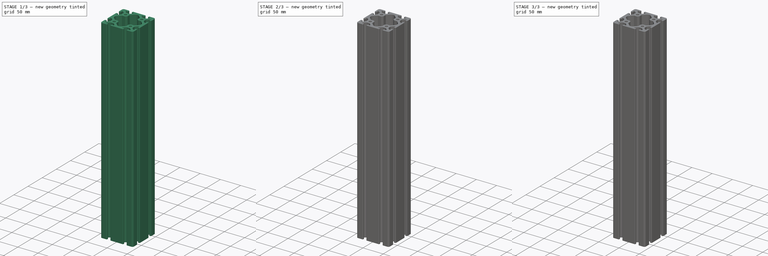
[diagram: build sequence overview — one tinted view per stage of 3, left to right]
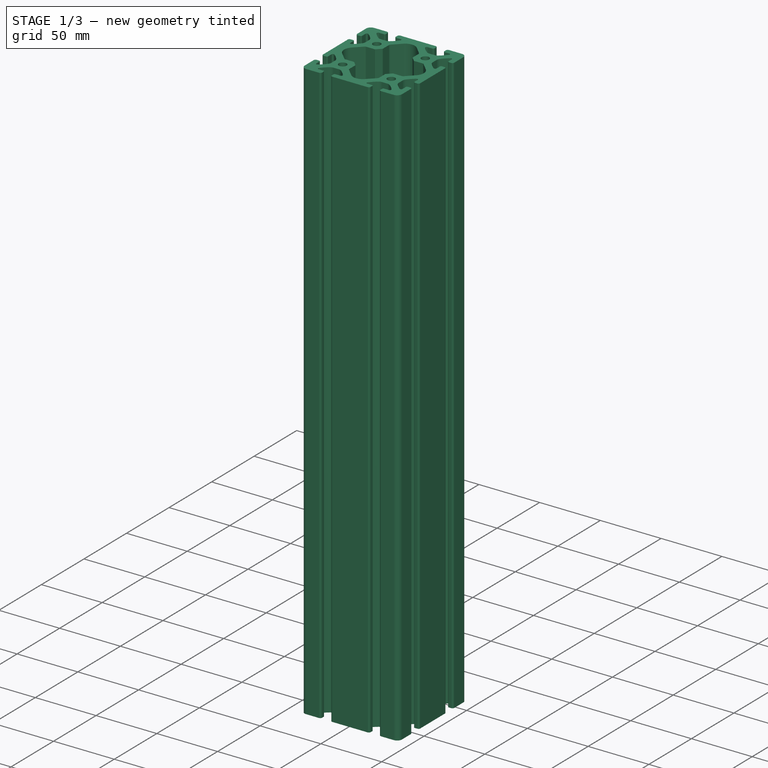
[diagram: stage 1 of 3 — iso view after this stage's code; geometry added in this stage tinted green]
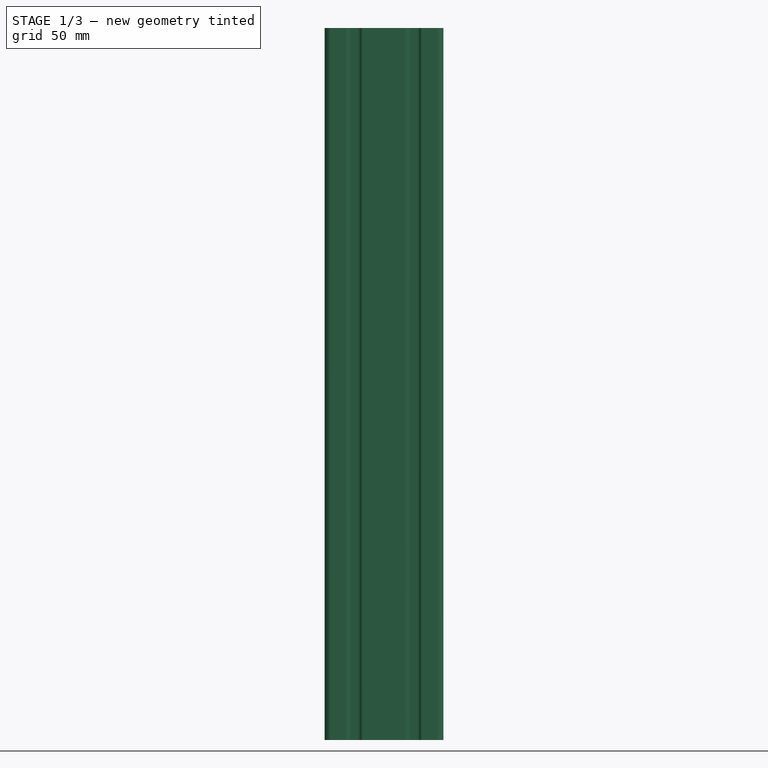
[diagram: stage 1 of 3 — front view after this stage's code; geometry added in this stage tinted green]
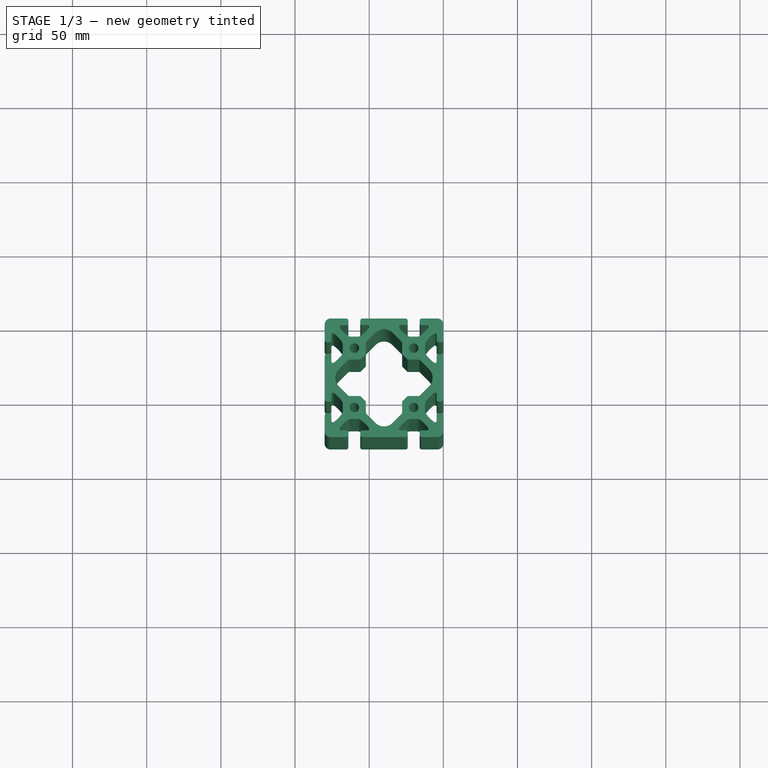
[diagram: stage 1 of 3 — top view after this stage's code; geometry added in this stage tinted green]
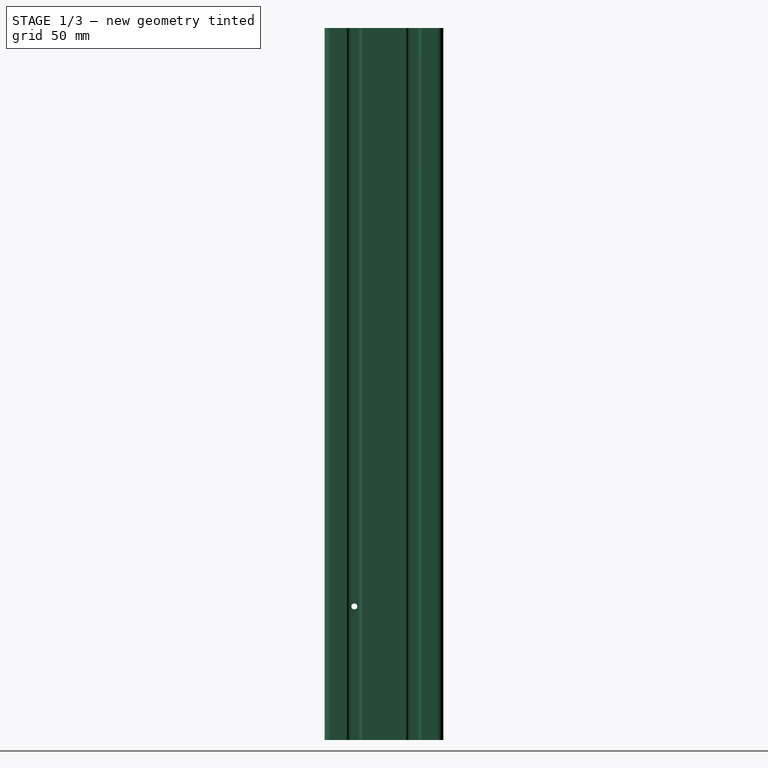
[diagram: stage 1 of 3 — right view after this stage's code; geometry added in this stage tinted green]
FCSTD DOCUMENT  (FreeCAD 0.21R38887 (Git))
Label: 8080
License: All rights reserved
LicenseURL: http://en.wikipedia.org/wiki/All_rights_reserved
objects: Sketcher::SketchObject×3, PartDesign::Hole×2, PartDesign::LinearPattern×2, PartDesign::SubShapeBinder×1, PartDesign::Pad×1, PartDesign::Body×1
note: 23 computed .brp shape members not serialized (recipe doc carries the construction recipe); baked Part::Feature solids carry a one-line shape summary decoded from their .brp

FEATURE [Sketcher::SketchObject] Sketch  label="80x80"
  ArcFitTolerance = 0
  ExternalBSplineMaxDegree = 0
  ExternalBSplineTolerance = 0
  FullyConstrained = false
  InternalTolerance = 1e-06
  InvalidShape = false
  MakeInternals = false
  MapMode = 5
  TreeRank = 0
  ValidateShape = false
  sketch-geometry (181):
    g0: ArcOfCircle CenterX=-8.25 CenterY=-22.1931 CenterZ=0 NormalX=0 NormalY=0 NormalZ=1 AngleXU=3.14159 Radius=4 StartAngle=0 EndAngle=0.639522
    g1: LineSegment StartX=-12.25 StartY=-22.1931 StartZ=0 EndX=-12.25 EndY=-17.8069 EndZ=0
    g2: ArcOfCircle CenterX=-8.25 CenterY=-17.8069 CenterZ=0 NormalX=0 NormalY=0 NormalZ=1 AngleXU=3.14159 Radius=4 StartAngle=5.64366 EndAngle=6.28319
    g3: ArcOfCircle CenterX=8.6 CenterY=-30.34 CenterZ=0 NormalX=0 NormalY=0 NormalZ=1 AngleXU=3.14159 Radius=25 StartAngle=5.34725 EndAngle=5.64366
    g4: ArcOfCircle CenterX=-5.58389 CenterY=-11.0839 CenterZ=0 NormalX=0 NormalY=0 NormalZ=1 AngleXU=3.14159 Radius=1.08388 StartAngle=3.14159 EndAngle=5.34725
    g5: LineSegment StartX=-4.5 StartY=-11.0839 StartZ=0 EndX=-4.5 EndY=-15 EndZ=0
    g6: ArcOfCircle CenterX=-3.5 CenterY=-15 CenterZ=0 NormalX=0 NormalY=0 NormalZ=1 AngleXU=3.14159 Radius=1 StartAngle=0 EndAngle=1.5708
    g7: LineSegment StartX=-3.5 StartY=-16 StartZ=0 EndX=-1.5 EndY=-16 EndZ=0
    g8: ArcOfCircle CenterX=-1.5 CenterY=-14.5 CenterZ=0 NormalX=0 NormalY=0 NormalZ=1 AngleXU=3.14159 Radius=1.5 StartAngle=1.5708 EndAngle=3.14159
    g9: LineSegment StartX=-1.8e-15 StartY=-14.5 StartZ=0 EndX=-9e-16 EndY=-4 EndZ=0
    g10: ArcOfCircle CenterX=-4 CenterY=-4 CenterZ=0 NormalX=0 NormalY=0 NormalZ=1 AngleXU=3.14159 Radius=4 StartAngle=3.14159 EndAngle=4.71239
    g11: LineSegment StartX=-4 StartY=4e-16 StartZ=0 EndX=-14.5 EndY=1.3e-15 EndZ=0
    g12: ArcOfCircle CenterX=-14.5 CenterY=-1.5 CenterZ=0 NormalX=0 NormalY=0 NormalZ=1 AngleXU=3.14159 Radius=1.5 StartAngle=4.71239 EndAngle=6.28319
    g13: LineSegment StartX=-16 StartY=-1.5 StartZ=0 EndX=-16 EndY=-3.5 EndZ=0
    g14: ArcOfCircle CenterX=-15 CenterY=-3.5 CenterZ=0 NormalX=0 NormalY=0 NormalZ=1 AngleXU=3.14159 Radius=1 StartAngle=0 EndAngle=1.5708
    g15: LineSegment StartX=-15 StartY=-4.5 StartZ=0 EndX=-11.0839 EndY=-4.5 EndZ=0
    g16: ArcOfCircle CenterX=-11.0839 CenterY=-5.58388 CenterZ=0 NormalX=0 NormalY=0 NormalZ=1 AngleXU=3.14159 Radius=1.08388 StartAngle=3.14159 EndAngle=4.71239
    g17: ArcOfCircle CenterX=-11.0839 CenterY=-5.58388 CenterZ=0 NormalX=0 NormalY=0 NormalZ=1 AngleXU=3.14159 Radius=1.08388 StartAngle=2.50673 EndAngle=3.14159
    g18: ArcOfCircle CenterX=-30.34 CenterY=8.6 CenterZ=0 NormalX=0 NormalY=0 NormalZ=1 AngleXU=3.14159 Radius=25 StartAngle=2.21032 EndAngle=2.50673
    g19: ArcOfCircle CenterX=-17.8069 CenterY=-8.25 CenterZ=0 NormalX=0 NormalY=0 NormalZ=1 AngleXU=3.14159 Radius=4 StartAngle=1.5708 EndAngle=2.21032
    g20: LineSegment StartX=-17.8069 StartY=-12.25 StartZ=0 EndX=-22.1931 EndY=-12.25 EndZ=0
    g21: ArcOfCircle CenterX=-22.1931 CenterY=-8.25 CenterZ=0 NormalX=0 NormalY=0 NormalZ=1 AngleXU=3.14159 Radius=4 StartAngle=0.931274 EndAngle=1.5708
    g22: ArcOfCircle CenterX=-9.66 CenterY=8.6 CenterZ=0 NormalX=0 NormalY=0 NormalZ=1 AngleXU=3.14159 Radius=25 StartAngle=0.634864 EndAngle=0.931274
    g23: ArcOfCircle CenterX=-28.9161 CenterY=-5.58388 CenterZ=0 NormalX=0 NormalY=0 NormalZ=1 AngleXU=3.14159 Radius=1.08388 StartAngle=4.71239 EndAngle=6.91805
    g24: LineSegment StartX=-28.9161 StartY=-4.5 StartZ=0 EndX=-25 EndY=-4.5 EndZ=0
    g25: ArcOfCircle CenterX=-25 CenterY=-3.5 CenterZ=0 NormalX=0 NormalY=0 NormalZ=1 AngleXU=3.14159 Radius=1 StartAngle=1.5708 EndAngle=3.14159
    g26: LineSegment StartX=-24 StartY=-3.5 StartZ=0 EndX=-24 EndY=-1.5 EndZ=0
    g27: ArcOfCircle CenterX=-25.5 CenterY=-1.5 CenterZ=0 NormalX=0 NormalY=0 NormalZ=1 AngleXU=3.14159 Radius=1.5 StartAngle=3.14159 EndAngle=4.71239
    g28: LineSegment StartX=-25.5 StartY=3.3e-15 StartZ=0 EndX=-54.5 EndY=8e-15 EndZ=0
    g29: ArcOfCircle CenterX=-54.5 CenterY=-1.5 CenterZ=0 NormalX=0 NormalY=0 NormalZ=1 AngleXU=3.14159 Radius=1.5 StartAngle=4.71239 EndAngle=6.28319
    g30: LineSegment StartX=-56 StartY=-1.5 StartZ=0 EndX=-56 EndY=-3.5 EndZ=0
    g31: ArcOfCircle CenterX=-55 CenterY=-3.5 CenterZ=0 NormalX=0 NormalY=0 NormalZ=1 AngleXU=3.14159 Radius=1 StartAngle=0 EndAngle=1.5708
    g32: LineSegment StartX=-55 StartY=-4.5 StartZ=0 EndX=-51.0839 EndY=-4.5 EndZ=0
    g33: ArcOfCircle CenterX=-51.0839 CenterY=-5.58388 CenterZ=0 NormalX=0 NormalY=0 NormalZ=1 AngleXU=3.14159 Radius=1.08388 StartAngle=3.14159 EndAngle=4.71239
    g34: ArcOfCircle CenterX=-51.0839 CenterY=-5.58388 CenterZ=0 NormalX=0 NormalY=0 NormalZ=1 AngleXU=3.14159 Radius=1.08388 StartAngle=2.50673 EndAngle=3.14159
    g35: ArcOfCircle CenterX=-70.34 CenterY=8.6 CenterZ=0 NormalX=0 NormalY=0 NormalZ=1 AngleXU=3.14159 Radius=25 StartAngle=2.21032 EndAngle=2.50673
    g36: ArcOfCircle CenterX=-57.8069 CenterY=-8.25 CenterZ=0 NormalX=0 NormalY=0 NormalZ=1 AngleXU=3.14159 Radius=4 StartAngle=1.5708 EndAngle=2.21032
    g37: LineSegment StartX=-57.8069 StartY=-12.25 StartZ=0 EndX=-62.1931 EndY=-12.25 EndZ=0
    g38: ArcOfCircle CenterX=-62.1931 CenterY=-8.25 CenterZ=0 NormalX=0 NormalY=0 NormalZ=1 AngleXU=3.14159 Radius=4 StartAngle=0.931274 EndAngle=1.5708
    g39: ArcOfCircle CenterX=-49.66 CenterY=8.6 CenterZ=0 NormalX=0 NormalY=0 NormalZ=1 AngleXU=3.14159 Radius=25 StartAngle=0.634864 EndAngle=0.931274
    g40: ArcOfCircle CenterX=-68.9161 CenterY=-5.58388 CenterZ=0 NormalX=0 NormalY=0 NormalZ=1 AngleXU=3.14159 Radius=1.08389 StartAngle=4.71239 EndAngle=6.91805
    g41: LineSegment StartX=-68.9161 StartY=-4.5 StartZ=0 EndX=-65 EndY=-4.5 EndZ=0
    g42: ArcOfCircle CenterX=-65 CenterY=-3.5 CenterZ=0 NormalX=0 NormalY=0 NormalZ=1 AngleXU=3.14159 Radius=1 StartAngle=1.5708 EndAngle=3.14159
    g43: LineSegment StartX=-64 StartY=-3.5 StartZ=0 EndX=-64 EndY=-1.5 EndZ=0
    g44: ArcOfCircle CenterX=-65.5 CenterY=-1.5 CenterZ=0 NormalX=0 NormalY=0 NormalZ=1 AngleXU=3.14159 Radius=1.5 StartAngle=3.14159 EndAngle=4.71239
    g45: LineSegment StartX=-65.5 StartY=8.2e-15 StartZ=0 EndX=-76 EndY=1.29e-14 EndZ=0
    g46: ArcOfCircle CenterX=-76 CenterY=-4 CenterZ=0 NormalX=0 NormalY=0 NormalZ=1 AngleXU=3.14159 Radius=4 StartAngle=4.71239 EndAngle=6.28319
    g47: LineSegment StartX=-80 StartY=-4 StartZ=0 EndX=-80 EndY=-14.5 EndZ=0
    g48: ArcOfCircle CenterX=-78.5 CenterY=-14.5 CenterZ=0 NormalX=0 NormalY=0 NormalZ=1 AngleXU=3.14159 Radius=1.5 StartAngle=0 EndAngle=1.5708
    g49: LineSegment StartX=-78.5 StartY=-16 StartZ=0 EndX=-76.5 EndY=-16 EndZ=0
    g50: ArcOfCircle CenterX=-76.5 CenterY=-15 CenterZ=0 NormalX=0 NormalY=0 NormalZ=1 AngleXU=3.14159 Radius=1 StartAngle=1.5708 EndAngle=3.14159
    g51: LineSegment StartX=-75.5 StartY=-15 StartZ=0 EndX=-75.5 EndY=-11.0839 EndZ=0
    g52: ArcOfCircle CenterX=-74.4161 CenterY=-11.0839 CenterZ=0 NormalX=0 NormalY=0 NormalZ=1 AngleXU=3.14159 Radius=1.08388 StartAngle=4.07752 EndAngle=6.28319
    g53: ArcOfCircle CenterX=-88.6 CenterY=-30.34 CenterZ=0 NormalX=0 NormalY=0 NormalZ=1 AngleXU=3.14159 Radius=25 StartAngle=3.78111 EndAngle=4.07752
    g54: ArcOfCircle CenterX=-71.75 CenterY=-17.8069 CenterZ=0 NormalX=0 NormalY=0 NormalZ=1 AngleXU=3.14159 Radius=4 StartAngle=3.14159 EndAngle=3.78111
    g55: LineSegment StartX=-67.75 StartY=-17.8069 StartZ=0 EndX=-67.75 EndY=-22.1931 EndZ=0
    g56: ArcOfCircle CenterX=-71.75 CenterY=-22.1931 CenterZ=0 NormalX=0 NormalY=0 NormalZ=1 AngleXU=3.14159 Radius=4 StartAngle=2.50207 EndAngle=3.14159
    g57: ArcOfCircle CenterX=-88.6 CenterY=-9.66 CenterZ=0 NormalX=0 NormalY=0 NormalZ=1 AngleXU=3.14159 Radius=25 StartAngle=2.20566 EndAngle=2.50207
    g58: ArcOfCircle CenterX=-74.4161 CenterY=-28.9161 CenterZ=0 NormalX=0 NormalY=0 NormalZ=1 AngleXU=3.14159 Radius=1.08388 StartAngle=6.28318 EndAngle=8.48885
    g59: LineSegment StartX=-75.5 StartY=-28.9161 StartZ=0 EndX=-75.5 EndY=-25 EndZ=0
    g60: ArcOfCircle CenterX=-76.5 CenterY=-25 CenterZ=0 NormalX=0 NormalY=0 NormalZ=1 AngleXU=3.14159 Radius=1 StartAngle=3.14159 EndAngle=4.71239
    g61: LineSegment StartX=-76.5 StartY=-24 StartZ=0 EndX=-78.5 EndY=-24 EndZ=0
    g62: ArcOfCircle CenterX=-78.5 CenterY=-25.5 CenterZ=0 NormalX=0 NormalY=0 NormalZ=1 AngleXU=3.14159 Radius=1.5 StartAngle=4.71239 EndAngle=6.28319
    g63: LineSegment StartX=-80 StartY=-25.5 StartZ=0 EndX=-80 EndY=-54.5 EndZ=0
    g64: ArcOfCircle CenterX=-78.5 CenterY=-54.5 CenterZ=0 NormalX=0 NormalY=0 NormalZ=1 AngleXU=3.14159 Radius=1.5 StartAngle=0 EndAngle=1.5708
    g65: LineSegment StartX=-78.5 StartY=-56 StartZ=0 EndX=-76.5 EndY=-56 EndZ=0
    g66: ArcOfCircle CenterX=-76.5 CenterY=-55 CenterZ=0 NormalX=0 NormalY=0 NormalZ=1 AngleXU=3.14159 Radius=1 StartAngle=1.5708 EndAngle=3.14159
    g67: LineSegment StartX=-75.5 StartY=-55 StartZ=0 EndX=-75.5 EndY=-51.0839 EndZ=0
    g68: ArcOfCircle CenterX=-74.4161 CenterY=-51.0839 CenterZ=0 NormalX=0 NormalY=0 NormalZ=1 AngleXU=3.14159 Radius=1.08388 StartAngle=4.07752 EndAngle=6.28319
    g69: ArcOfCircle CenterX=-88.6 CenterY=-70.34 CenterZ=0 NormalX=0 NormalY=0 NormalZ=1 AngleXU=3.14159 Radius=25 StartAngle=3.78111 EndAngle=4.07752
    g70: ArcOfCircle CenterX=-71.75 CenterY=-57.8069 CenterZ=0 NormalX=0 NormalY=0 NormalZ=1 AngleXU=3.14159 Radius=4 StartAngle=3.14159 EndAngle=3.78111
    g71: LineSegment StartX=-67.75 StartY=-57.8069 StartZ=0 EndX=-67.75 EndY=-62.1931 EndZ=0
    g72: ArcOfCircle CenterX=-71.75 CenterY=-62.1931 CenterZ=0 NormalX=0 NormalY=0 NormalZ=1 AngleXU=3.14159 Radius=4 StartAngle=2.50207 EndAngle=3.14159
    g73: ArcOfCircle CenterX=-88.6 CenterY=-49.66 CenterZ=0 NormalX=0 NormalY=0 NormalZ=1 AngleXU=3.14159 Radius=25 StartAngle=2.20566 EndAngle=2.50207
    g74: ArcOfCircle CenterX=-74.4161 CenterY=-68.9161 CenterZ=0 NormalX=0 NormalY=0 NormalZ=1 AngleXU=3.14159 Radius=1.08388 StartAngle=6.28318 EndAngle=8.48885
    g75: LineSegment StartX=-75.5 StartY=-68.9161 StartZ=0 EndX=-75.5 EndY=-65 EndZ=0
    g76: ArcOfCircle CenterX=-76.5 CenterY=-65 CenterZ=0 NormalX=0 NormalY=0 NormalZ=1 AngleXU=3.14159 Radius=1 StartAngle=3.14159 EndAngle=4.71239
    g77: LineSegment StartX=-76.5 StartY=-64 StartZ=0 EndX=-78.5 EndY=-64 EndZ=0
    g78: ArcOfCircle CenterX=-78.5 CenterY=-65.5 CenterZ=0 NormalX=0 NormalY=0 NormalZ=1 AngleXU=3.14159 Radius=1.5 StartAngle=4.71239 EndAngle=6.28319
    g79: LineSegment StartX=-80 StartY=-65.5 StartZ=0 EndX=-80 EndY=-76 EndZ=0
    g80: ArcOfCircle CenterX=-76 CenterY=-76 CenterZ=0 NormalX=0 NormalY=0 NormalZ=1 AngleXU=3.14159 Radius=4 StartAngle=0 EndAngle=1.5708
    g81: LineSegment StartX=-76 StartY=-80 StartZ=0 EndX=-65.5 EndY=-80 EndZ=0
    g82: ArcOfCircle CenterX=-65.5 CenterY=-78.5 CenterZ=0 NormalX=0 NormalY=0 NormalZ=1 AngleXU=3.14159 Radius=1.5 StartAngle=1.5708 EndAngle=3.14159
    g83: LineSegment StartX=-64 StartY=-78.5 StartZ=0 EndX=-64 EndY=-76.5 EndZ=0
    g84: ArcOfCircle CenterX=-65 CenterY=-76.5 CenterZ=0 NormalX=0 NormalY=0 NormalZ=1 AngleXU=3.14159 Radius=1 StartAngle=3.14159 EndAngle=4.71239
    g85: LineSegment StartX=-65 StartY=-75.5 StartZ=0 EndX=-68.9161 EndY=-75.5 EndZ=0
    g86: ArcOfCircle CenterX=-68.9161 CenterY=-74.4161 CenterZ=0 NormalX=0 NormalY=0 NormalZ=1 AngleXU=3.14159 Radius=1.08388 StartAngle=5.64832 EndAngle=7.85398
    g87: ArcOfCircle CenterX=-49.66 CenterY=-88.6 CenterZ=0 NormalX=0 NormalY=0 NormalZ=1 AngleXU=3.14159 Radius=25 StartAngle=5.35191 EndAngle=5.64832
    g88: ArcOfCircle CenterX=-62.1931 CenterY=-71.75 CenterZ=0 NormalX=0 NormalY=0 NormalZ=1 AngleXU=3.14159 Radius=4 StartAngle=4.71239 EndAngle=5.35191
    g89: LineSegment StartX=-62.1931 StartY=-67.75 StartZ=0 EndX=-57.8069 EndY=-67.75 EndZ=0
    g90: ArcOfCircle CenterX=-57.8069 CenterY=-71.75 CenterZ=0 NormalX=0 NormalY=0 NormalZ=1 AngleXU=3.14159 Radius=4 StartAngle=4.07287 EndAngle=4.71239
    g91: ArcOfCircle CenterX=-70.34 CenterY=-88.6 CenterZ=0 NormalX=0 NormalY=0 NormalZ=1 AngleXU=3.14159 Radius=25 StartAngle=3.77646 EndAngle=4.07287
    g92: ArcOfCircle CenterX=-51.0839 CenterY=-74.4161 CenterZ=0 NormalX=0 NormalY=0 NormalZ=1 AngleXU=3.14159 Radius=1.08388 StartAngle=3.14159 EndAngle=3.77646
    g93: ArcOfCircle CenterX=-51.0839 CenterY=-74.4161 CenterZ=0 NormalX=0 NormalY=0 NormalZ=1 AngleXU=3.14159 Radius=1.08388 StartAngle=1.5708 EndAngle=3.14159
    g94: LineSegment StartX=-51.0839 StartY=-75.5 StartZ=0 EndX=-55 EndY=-75.5 EndZ=0
    g95: ArcOfCircle CenterX=-55 CenterY=-76.5 CenterZ=0 NormalX=0 NormalY=0 NormalZ=1 AngleXU=3.14159 Radius=1 StartAngle=4.71239 EndAngle=6.28319
    g96: LineSegment StartX=-56 StartY=-76.5 StartZ=0 EndX=-56 EndY=-78.5 EndZ=0
    g97: ArcOfCircle CenterX=-54.5 CenterY=-78.5 CenterZ=0 NormalX=0 NormalY=0 NormalZ=1 AngleXU=3.14159 Radius=1.5 StartAngle=0 EndAngle=1.5708
    g98: LineSegment StartX=-54.5 StartY=-80 StartZ=0 EndX=-25.5 EndY=-80 EndZ=0
    g99: ArcOfCircle CenterX=-25.5 CenterY=-78.5 CenterZ=0 NormalX=0 NormalY=0 NormalZ=1 AngleXU=3.14159 Radius=1.5 StartAngle=1.5708 EndAngle=3.14159
    g100: LineSegment StartX=-24 StartY=-78.5 StartZ=0 EndX=-24 EndY=-76.5 EndZ=0
    g101: ArcOfCircle CenterX=-25 CenterY=-76.5 CenterZ=0 NormalX=0 NormalY=0 NormalZ=1 AngleXU=3.14159 Radius=1 StartAngle=3.14159 EndAngle=4.71239
    g102: LineSegment StartX=-25 StartY=-75.5 StartZ=0 EndX=-28.9161 EndY=-75.5 EndZ=0
    g103: ArcOfCircle CenterX=-28.9161 CenterY=-74.4161 CenterZ=0 NormalX=0 NormalY=0 NormalZ=1 AngleXU=3.14159 Radius=1.08388 StartAngle=5.64832 EndAngle=7.85398
    g104: ArcOfCircle CenterX=-9.66 CenterY=-88.6 CenterZ=0 NormalX=0 NormalY=0 NormalZ=1 AngleXU=3.14159 Radius=25 StartAngle=5.35191 EndAngle=5.64832
    g105: ArcOfCircle CenterX=-22.1931 CenterY=-71.75 CenterZ=0 NormalX=0 NormalY=0 NormalZ=1 AngleXU=3.14159 Radius=4 StartAngle=4.71239 EndAngle=5.35191
    g106: LineSegment StartX=-22.1931 StartY=-67.75 StartZ=0 EndX=-17.8069 EndY=-67.75 EndZ=0
    g107: ArcOfCircle CenterX=-17.8069 CenterY=-71.75 CenterZ=0 NormalX=0 NormalY=0 NormalZ=1 AngleXU=3.14159 Radius=4 StartAngle=4.07287 EndAngle=4.71239
    g108: ArcOfCircle CenterX=-30.34 CenterY=-88.6 CenterZ=0 NormalX=0 NormalY=0 NormalZ=1 AngleXU=3.14159 Radius=25 StartAngle=3.77646 EndAngle=4.07287
    g109: ArcOfCircle CenterX=-11.0839 CenterY=-74.4161 CenterZ=0 NormalX=0 NormalY=0 NormalZ=1 AngleXU=3.14159 Radius=1.08388 StartAngle=3.14159 EndAngle=3.77646
    g110: ArcOfCircle CenterX=-11.0839 CenterY=-74.4161 CenterZ=0 NormalX=0 NormalY=0 NormalZ=1 AngleXU=3.14159 Radius=1.08388 StartAngle=1.5708 EndAngle=3.14159
    g111: LineSegment StartX=-11.0839 StartY=-75.5 StartZ=0 EndX=-15 EndY=-75.5 EndZ=0
    g112: ArcOfCircle CenterX=-15 CenterY=-76.5 CenterZ=0 NormalX=0 NormalY=0 NormalZ=1 AngleXU=3.14159 Radius=1 StartAngle=4.71239 EndAngle=6.28319
    g113: LineSegment StartX=-16 StartY=-76.5 StartZ=0 EndX=-16 EndY=-78.5 EndZ=0
    g114: ArcOfCircle CenterX=-14.5 CenterY=-78.5 CenterZ=0 NormalX=0 NormalY=0 NormalZ=1 AngleXU=3.14159 Radius=1.5 StartAngle=0 EndAngle=1.5708
    g115: LineSegment StartX=-14.5 StartY=-80 StartZ=0 EndX=-4 EndY=-80 EndZ=0
    g116: ArcOfCircle CenterX=-4 CenterY=-76 CenterZ=0 NormalX=0 NormalY=0 NormalZ=1 AngleXU=3.14159 Radius=4 StartAngle=1.5708 EndAngle=3.14159
    g117: LineSegment StartX=-8.9e-15 StartY=-76 StartZ=0 EndX=-7.1e-15 EndY=-65.5 EndZ=0
    g118: ArcOfCircle CenterX=-1.5 CenterY=-65.5 CenterZ=0 NormalX=0 NormalY=0 NormalZ=1 AngleXU=3.14159 Radius=1.5 StartAngle=3.14159 EndAngle=4.71239
    g119: LineSegment StartX=-1.5 StartY=-64 StartZ=0 EndX=-3.5 EndY=-64 EndZ=0
    g120: ArcOfCircle CenterX=-3.5 CenterY=-65 CenterZ=0 NormalX=0 NormalY=0 NormalZ=1 AngleXU=3.14159 Radius=1 StartAngle=4.71239 EndAngle=6.28319
    g121: LineSegment StartX=-4.5 StartY=-65 StartZ=0 EndX=-4.5 EndY=-68.9161 EndZ=0
    g122: ArcOfCircle CenterX=-5.58388 CenterY=-68.9161 CenterZ=0 NormalX=0 NormalY=0 NormalZ=1 AngleXU=3.14159 Radius=1.08388 StartAngle=0.935932 EndAngle=3.14159
    g123: ArcOfCircle CenterX=8.6 CenterY=-49.66 CenterZ=0 NormalX=0 NormalY=0 NormalZ=1 AngleXU=3.14159 Radius=25 StartAngle=0.639522 EndAngle=0.935932
    g124: ArcOfCircle CenterX=-8.25 CenterY=-62.1931 CenterZ=0 NormalX=0 NormalY=0 NormalZ=1 AngleXU=3.14159 Radius=4 StartAngle=5e-07 EndAngle=0.639522
    g125: LineSegment StartX=-12.25 StartY=-62.1931 StartZ=0 EndX=-12.25 EndY=-57.8069 EndZ=0
    g126: ArcOfCircle CenterX=-8.25 CenterY=-57.8069 CenterZ=0 NormalX=0 NormalY=0 NormalZ=1 AngleXU=3.14159 Radius=4 StartAngle=5.64366 EndAngle=6.28318
    g127: ArcOfCircle CenterX=8.6 CenterY=-70.34 CenterZ=0 NormalX=0 NormalY=0 NormalZ=1 AngleXU=3.14159 Radius=25 StartAngle=5.34725 EndAngle=5.64366
    g128: ArcOfCircle CenterX=-5.58389 CenterY=-51.0839 CenterZ=0 NormalX=0 NormalY=0 NormalZ=1 AngleXU=3.14159 Radius=1.08389 StartAngle=3.14159 EndAngle=5.34725
    g129: LineSegment StartX=-4.5 StartY=-51.0839 StartZ=0 EndX=-4.5 EndY=-55 EndZ=0
    g130: ArcOfCircle CenterX=-3.5 CenterY=-55 CenterZ=0 NormalX=0 NormalY=0 NormalZ=1 AngleXU=3.14159 Radius=1 StartAngle=0 EndAngle=1.5708
    g131: LineSegment StartX=-3.5 StartY=-56 StartZ=0 EndX=-1.5 EndY=-56 EndZ=0
    g132: ArcOfCircle CenterX=-1.5 CenterY=-54.5 CenterZ=0 NormalX=0 NormalY=0 NormalZ=1 AngleXU=3.14159 Radius=1.5 StartAngle=1.5708 EndAngle=3.14159
    g133: LineSegment StartX=-6.2e-15 StartY=-54.5 StartZ=0 EndX=-2.2e-15 EndY=-25.5 EndZ=0
    g134: ArcOfCircle CenterX=-1.5 CenterY=-25.5 CenterZ=0 NormalX=0 NormalY=0 NormalZ=1 AngleXU=3.14159 Radius=1.5 StartAngle=3.14159 EndAngle=4.71239
    g135: LineSegment StartX=-1.5 StartY=-24 StartZ=0 EndX=-3.5 EndY=-24 EndZ=0
    g136: ArcOfCircle CenterX=-3.5 CenterY=-25 CenterZ=0 NormalX=0 NormalY=0 NormalZ=1 AngleXU=3.14159 Radius=1 StartAngle=4.71239 EndAngle=6.28319
    g137: LineSegment StartX=-4.5 StartY=-25 StartZ=0 EndX=-4.5 EndY=-28.9161 EndZ=0
    g138: ArcOfCircle CenterX=-5.58388 CenterY=-28.9161 CenterZ=0 NormalX=0 NormalY=0 NormalZ=1 AngleXU=3.14159 Radius=1.08388 StartAngle=0.935932 EndAngle=3.14159
    g139: ArcOfCircle CenterX=8.6 CenterY=-9.66 CenterZ=0 NormalX=0 NormalY=0 NormalZ=1 AngleXU=3.14159 Radius=25 StartAngle=0.639522 EndAngle=0.935932
    g140: LineSegment StartX=-9.53924 StartY=-34.3431 StartZ=0 EndX=-15.693 EndY=-28.1893 EndZ=0
    g141: ArcOfCircle CenterX=-15.1961 CenterY=-40 CenterZ=0 NormalX=0 NormalY=0 NormalZ=1 AngleXU=3.14159 Radius=8 StartAngle=3.14159 EndAngle=3.92699
    g142: ArcOfCircle CenterX=-15.1961 CenterY=-40 CenterZ=0 NormalX=0 NormalY=0 NormalZ=1 AngleXU=3.14159 Radius=8 StartAngle=2.35619 EndAngle=3.14159
    g143: LineSegment StartX=-15.693 StartY=-51.8107 StartZ=0 EndX=-9.53924 EndY=-45.6569 EndZ=0
    g144: ArcOfCircle CenterX=-16.7537 CenterY=-50.75 CenterZ=0 NormalX=0 NormalY=0 NormalZ=1 AngleXU=3.14159 Radius=1.5 StartAngle=1.5708 EndAngle=2.35619
    g145: LineSegment StartX=-23.9657 StartY=-52.25 StartZ=0 EndX=-16.7537 EndY=-52.25 EndZ=0
    g146: LineSegment StartX=-27.75 StartY=-56.0343 StartZ=0 EndX=-23.9657 EndY=-52.25 EndZ=0
    g147: LineSegment StartX=-27.75 StartY=-63.2463 StartZ=0 EndX=-27.75 EndY=-56.0343 EndZ=0
    g148: ArcOfCircle CenterX=-29.25 CenterY=-63.2463 CenterZ=0 NormalX=0 NormalY=0 NormalZ=1 AngleXU=3.14159 Radius=1.5 StartAngle=2.35619 EndAngle=3.14159
    g149: LineSegment StartX=-34.3431 StartY=-70.4608 StartZ=0 EndX=-28.1893 EndY=-64.307 EndZ=0
    g150: ArcOfCircle CenterX=-40 CenterY=-64.8039 CenterZ=0 NormalX=0 NormalY=0 NormalZ=1 AngleXU=3.14159 Radius=8 StartAngle=0.785398 EndAngle=2.35619
    g151: LineSegment StartX=-51.8107 StartY=-64.307 StartZ=0 EndX=-45.6569 EndY=-70.4608 EndZ=0
    g152: ArcOfCircle CenterX=-50.75 CenterY=-63.2463 CenterZ=0 NormalX=0 NormalY=0 NormalZ=1 AngleXU=3.14159 Radius=1.5 StartAngle=6.28318 EndAngle=7.06859
    g153: LineSegment StartX=-52.25 StartY=-56.0343 StartZ=0 EndX=-52.25 EndY=-63.2463 EndZ=0
    g154: LineSegment StartX=-56.0343 StartY=-52.25 StartZ=0 EndX=-52.25 EndY=-56.0343 EndZ=0
    g155: LineSegment StartX=-63.2463 StartY=-52.25 StartZ=0 EndX=-56.0343 EndY=-52.25 EndZ=0
    g156: ArcOfCircle CenterX=-63.2463 CenterY=-50.75 CenterZ=0 NormalX=0 NormalY=0 NormalZ=1 AngleXU=3.14159 Radius=1.5 StartAngle=0.785399 EndAngle=1.5708
    g157: LineSegment StartX=-70.4608 StartY=-45.6569 StartZ=0 EndX=-64.307 EndY=-51.8107 EndZ=0
    g158: ArcOfCircle CenterX=-64.8039 CenterY=-40 CenterZ=0 NormalX=0 NormalY=0 NormalZ=1 AngleXU=3.14159 Radius=8 StartAngle=5.49779 EndAngle=7.06858
    g159: LineSegment StartX=-64.307 StartY=-28.1893 StartZ=0 EndX=-70.4608 EndY=-34.3431 EndZ=0
    g160: ArcOfCircle CenterX=-63.2463 CenterY=-29.25 CenterZ=0 NormalX=0 NormalY=0 NormalZ=1 AngleXU=3.14159 Radius=1.5 StartAngle=4.71239 EndAngle=5.49779
    g161: LineSegment StartX=-56.0343 StartY=-27.75 StartZ=0 EndX=-63.2463 EndY=-27.75 EndZ=0
    g162: LineSegment StartX=-52.25 StartY=-23.9657 StartZ=0 EndX=-56.0343 EndY=-27.75 EndZ=0
    g163: LineSegment StartX=-52.25 StartY=-16.7537 StartZ=0 EndX=-52.25 EndY=-23.9657 EndZ=0
    g164: ArcOfCircle CenterX=-50.75 CenterY=-16.7537 CenterZ=0 NormalX=0 NormalY=0 NormalZ=1 AngleXU=3.14159 Radius=1.5 StartAngle=5.49779 EndAngle=6.28319
    g165: LineSegment StartX=-45.6569 StartY=-9.53924 StartZ=0 EndX=-51.8107 EndY=-15.693 EndZ=0
    g166: ArcOfCircle CenterX=-40 CenterY=-15.1961 CenterZ=0 NormalX=0 NormalY=0 NormalZ=1 AngleXU=3.14159 Radius=8 StartAngle=3.92699 EndAngle=5.49779
    g167: LineSegment StartX=-28.1893 StartY=-15.693 StartZ=0 EndX=-34.3431 EndY=-9.53924 EndZ=0
    g168: ArcOfCircle CenterX=-29.25 CenterY=-16.7537 CenterZ=0 NormalX=0 NormalY=0 NormalZ=1 AngleXU=3.14159 Radius=1.5 StartAngle=3.14159 EndAngle=3.92699
    g169: LineSegment StartX=-27.75 StartY=-23.9657 StartZ=0 EndX=-27.75 EndY=-16.7537 EndZ=0
    g170: LineSegment StartX=-23.9657 StartY=-27.75 StartZ=0 EndX=-27.75 EndY=-23.9657 EndZ=0
    g171: LineSegment StartX=-16.7537 StartY=-27.75 StartZ=0 EndX=-23.9657 EndY=-27.75 EndZ=0
    g172: ArcOfCircle CenterX=-16.7537 CenterY=-29.25 CenterZ=0 NormalX=0 NormalY=0 NormalZ=1 AngleXU=3.14159 Radius=1.5 StartAngle=3.92699 EndAngle=4.71239
    g173: Circle CenterX=-60 CenterY=-60 CenterZ=0 NormalX=0 NormalY=0 NormalZ=1 AngleXU=0 Radius=3.2
    g174: Circle CenterX=-20 CenterY=-60 CenterZ=0 NormalX=0 NormalY=0 NormalZ=1 AngleXU=0 Radius=3.2
    g175: LineSegment [constr] StartX=-60 StartY=-60 StartZ=0 EndX=-20 EndY=-60 EndZ=0
    g176: LineSegment [constr] StartX=-20 StartY=-60 StartZ=0 EndX=-20 EndY=-20 EndZ=0
    g177: LineSegment [constr] StartX=-20 StartY=-20 StartZ=0 EndX=-60 EndY=-20 EndZ=0
    g178: LineSegment [constr] StartX=-60 StartY=-20 StartZ=0 EndX=-60 EndY=-60 EndZ=0
    g179: Circle CenterX=-59.945 CenterY=-20 CenterZ=0 NormalX=0 NormalY=0 NormalZ=1 AngleXU=0 Radius=3.2
    g180: Circle CenterX=-20 CenterY=-20 CenterZ=0 NormalX=0 NormalY=0 NormalZ=1 AngleXU=0 Radius=3.2
  constraints (268):
    c: Coincident(g0,g1)
    c: Vertical(g1)
    c: Coincident(g1,g2)
    c: Coincident(g2,g3)
    c: Coincident(g3,g4)
    c: Coincident(g4,g5)
    c: Coincident(g5,g6)
    c: Coincident(g6,g7)
    c: Horizontal(g7)
    c: Coincident(g7,g8)
    c: Coincident(g8,g9)
    c: Coincident(g9,g10)
    c: Coincident(g10,g11)
    c: Coincident(g11,g12)
    c: Coincident(g12,g13)
    c: Vertical(g13)
    c: Coincident(g13,g14)
    c: Coincident(g14,g15)
    c: Coincident(g15,g16)
    c: Coincident(g16,g17)
    c: Coincident(g17,g18)
    c: Coincident(g18,g19)
    c: Coincident(g19,g20)
    c: Horizontal(g20)
    c: Coincident(g20,g21)
    c: Coincident(g21,g22)
    c: Coincident(g22,g23)
    c: Coincident(g23,g24)
    c: Coincident(g24,g25)
    c: Coincident(g25,g26)
    c: Vertical(g26)
    c: Coincident(g26,g27)
    c: Coincident(g27,g28)
    c: Coincident(g28,g29)
    c: Coincident(g29,g30)
    c: Vertical(g30)
    c: Coincident(g30,g31)
    c: Coincident(g31,g32)
    c: Coincident(g32,g33)
    c: Coincident(g33,g34)
    c: Coincident(g34,g35)
    c: Coincident(g35,g36)
    c: Coincident(g36,g37)
    c: Horizontal(g37)
    c: Coincident(g37,g38)
    c: Coincident(g38,g39)
    c: Coincident(g39,g40)
    c: Coincident(g40,g41)
    c: Coincident(g41,g42)
    c: Coincident(g42,g43)
    c: Vertical(g43)
    c: Coincident(g43,g44)
    c: Coincident(g44,g45)
    c: Coincident(g45,g46)
    c: Coincident(g46,g47)
    c: Vertical(g47)
    c: Coincident(g47,g48)
    c: Coincident(g48,g49)
    c: Horizontal(g49)
    c: Coincident(g49,g50)
    c: Coincident(g50,g51)
    c: Vertical(g51)
    c: Coincident(g51,g52)
    c: Coincident(g52,g53)
    c: Coincident(g53,g54)
    c: Coincident(g54,g55)
    c: Vertical(g55)
    c: Coincident(g55,g56)
    c: Coincident(g56,g57)
    c: Coincident(g57,g58)
    c: Coincident(g58,g59)
    c: Vertical(g59)
    c: Coincident(g59,g60)
    c: Coincident(g60,g61)
    c: Horizontal(g61)
    c: Coincident(g61,g62)
    c: Coincident(g62,g63)
    c: Vertical(g63)
    c: Coincident(g63,g64)
    c: Coincident(g64,g65)
    c: Horizontal(g65)
    c: Coincident(g65,g66)
    c: Coincident(g66,g67)
    c: Vertical(g67)
    c: Coincident(g67,g68)
    c: Coincident(g68,g69)
    c: Coincident(g69,g70)
    c: Coincident(g70,g71)
    c: Vertical(g71)
    c: Coincident(g71,g72)
    c: Coincident(g72,g73)
    c: Coincident(g73,g74)
    c: Coincident(g74,g75)
    c: Vertical(g75)
    c: Coincident(g75,g76)
    c: Coincident(g76,g77)
    c: Horizontal(g77)
    c: Coincident(g77,g78)
    c: Coincident(g78,g79)
    c: Vertical(g79)
    c: Coincident(g79,g80)
    c: Coincident(g80,g81)
    c: Horizontal(g81)
    c: Coincident(g81,g82)
    c: Coincident(g82,g83)
    c: Vertical(g83)
    c: Coincident(g83,g84)
    c: Coincident(g84,g85)
    c: Horizontal(g85)
    c: Coincident(g85,g86)
    c: Coincident(g86,g87)
    c: Coincident(g87,g88)
    c: Coincident(g88,g89)
    c: Horizontal(g89)
    c: Coincident(g89,g90)
    c: Coincident(g90,g91)
    c: Coincident(g91,g92)
    c: Coincident(g92,g93)
    c: Coincident(g93,g94)
    c: Horizontal(g94)
    c: Coincident(g94,g95)
    c: Coincident(g95,g96)
    c: Vertical(g96)
    c: Coincident(g96,g97)
    c: Coincident(g97,g98)
    c: Horizontal(g98)
    c: Coincident(g98,g99)
    c: Coincident(g99,g100)
    c: Vertical(g100)
    c: Coincident(g100,g101)
    c: Coincident(g101,g102)
    c: Horizontal(g102)
    c: Coincident(g102,g103)
    c: Coincident(g103,g104)
    c: Coincident(g104,g105)
    c: Coincident(g105,g106)
    c: Horizontal(g106)
    c: Coincident(g106,g107)
    c: Coincident(g107,g108)
    c: Coincident(g108,g109)
    c: Coincident(g109,g110)
    c: Coincident(g110,g111)
    c: Horizontal(g111)
    c: Coincident(g111,g112)
    c: Coincident(g112,g113)
    c: Vertical(g113)
    c: Coincident(g113,g114)
    c: Coincident(g114,g115)
    c: Horizontal(g115)
    c: Coincident(g115,g116)
    c: Coincident(g116,g117)
    c: Coincident(g117,g118)
    c: Coincident(g118,g119)
    c: Horizontal(g119)
    c: Coincident(g119,g120)
    c: Coincident(g120,g121)
    c: Coincident(g121,g122)
    c: Coincident(g122,g123)
    c: Coincident(g123,g124)
    c: Coincident(g124,g125)
    c: Vertical(g125)
    c: Coincident(g125,g126)
    c: Coincident(g126,g127)
    c: Coincident(g127,g128)
    c: Coincident(g128,g129)
    c: Coincident(g129,g130)
    c: Coincident(g130,g131)
    c: Horizontal(g131)
    c: Coincident(g131,g132)
    c: Coincident(g132,g133)
    c: Coincident(g133,g134)
    c: Coincident(g134,g135)
    c: Horizontal(g135)
    c: Coincident(g135,g136)
    c: Coincident(g136,g137)
    c: Coincident(g137,g138)
    c: Coincident(g138,g139)
    c: Coincident(g139,g0)
    c: Coincident(g140,g141)
    c: Coincident(g141,g142)
    c: Coincident(g142,g143)
    c: Coincident(g143,g144)
    c: Coincident(g144,g145)
    c: Horizontal(g145)
    c: Coincident(g145,g146)
    c: Coincident(g146,g147)
    c: Vertical(g147)
    c: Coincident(g147,g148)
    c: Coincident(g148,g149)
    c: Coincident(g149,g150)
    c: Coincident(g150,g151)
    c: Coincident(g151,g152)
    c: Coincident(g152,g153)
    c: Vertical(g153)
    c: Coincident(g153,g154)
    c: Coincident(g154,g155)
    c: Horizontal(g155)
    c: Coincident(g155,g156)
    c: Coincident(g156,g157)
    c: Coincident(g157,g158)
    c: Coincident(g158,g159)
    c: Coincident(g159,g160)
    c: Coincident(g160,g161)
    c: Horizontal(g161)
    c: Coincident(g161,g162)
    c: Coincident(g162,g163)
    c: Vertical(g163)
    c: Coincident(g163,g164)
    c: Coincident(g164,g165)
    c: Coincident(g165,g166)
    c: Coincident(g166,g167)
    c: Coincident(g167,g168)
    c: Coincident(g168,g169)
    c: Vertical(g169)
    c: Coincident(g169,g170)
    c: Coincident(g170,g171)
    c: Horizontal(g171)
    c: Coincident(g171,g172)
    c: Coincident(g172,g140)
    c: DistanceX(g46,g9) = 80  'ShurinaProfilja'
    c: DistanceY(g80,g45) = 80
    c: Equal(g81,g79)
    c: Equal(g79,g115)
    c: Equal(g115,g117)
    c: Equal(g117,g47)
    c: Equal(g47,g45)
    c: Equal(g45,g11)
    c: Equal(g11,g9)
    c: Equal(g63,g28)
    c: Equal(g28,g133)
    c: Equal(g133,g98)
    c: Equal(g161,g163)
    c: Equal(g163,g169)
    c: Equal(g169,g171)
    c: Equal(g171,g145)
    c: Equal(g145,g147)
    c: Equal(g147,g155)
    c: Equal(g155,g153)
    c: Equal(g159,g157)
    c: Equal(g157,g165)
    c: Equal(g165,g167)
    c: Equal(g167,g140)
    c: Equal(g140,g143)
    c: Equal(g143,g151)
    c: Equal(g151,g149)
    c: Equal(g150,g158)
    c: Equal(g158,g141)
    c: Equal(g141,g142)
    c: Equal(g142,g166)
    c: DistanceX(g43,g29) = 8  'ShirinaPaza'
    c: Horizontal(g173,g174)
    c: Coincident(g175,g176)
    c: Coincident(g176,g177)
    c: Coincident(g177,g178)
    c: Coincident(g178,g175)
    c: Horizontal(g177)
    c: Vertical(g176)
    c: Vertical(g178)
    c: Equal(g175,g176)
    c: Coincident(g175,g173)
    c: Coincident(g174,g175)
    c: DistanceX(g176) = -20
    c: DistanceY(g176) = -20
    c: Radius(g179) = 3.2
    c: Equal(g179,g180)
    c: Equal(g179,g174)
    c: Equal(g179,g173)
    c: DistanceX(g177,g177) = 40
FEATURE [PartDesign::SubShapeBinder] Import  label="Import(80x80)"
  BindCopyOnChange = 0
  BindMode = 0
  ClaimChildren = false
  Context = -> Body [Pad.Import.]
  EdgeTolerance = 1e-06
  FillStyle = 0
  Fuse = false
  InvalidShape = false
  MakeFace = false
  MergeEdges = true
  OffsetFill = false
  OffsetIntersection = false
  OffsetJoinType = 0
  OffsetOpenResult = false
  Outline = false
  PartialLoad = false
  Refine = true
  Relative = true
  SplitEdges = false
  Support = -> [Sketch]
  TightBound = false
  TreeRank = 0
  ValidateShape = false
  _Version = 7
FEATURE [PartDesign::Pad] Pad
  AddSubType = 0
  AlongSketchNormal = false
  AutoTaperInnerAngle = false
  CheckUpToFaceLimits = true
  ClaimChildren = false
  Direction = (0,0,1)
  Fit = 0
  FitJoin = 0
  InnerFit = 0
  InnerFitJoin = 0
  InvalidShape = false
  Length = 480
  Length2 = 100
  Midplane = true
  NewSolid = false
  Profile = -> Import
  Suppress = false
  TaperInnerAngle = 0
  TaperInnerAngleRev = 0
  TreeRank = 0
  Type = 0
  UsePipeForDraft = true
  ValidateShape = true
  _ProfileBasedVersion = 0
FEATURE [Sketcher::SketchObject] Sketch001  label="Отверстие1"
  ArcFitTolerance = 0
  AttachmentSupport = -> [Pad]
  ExternalBSplineMaxDegree = 0
  ExternalBSplineTolerance = 0
  FullyConstrained = false
  InternalTolerance = 1e-06
  InvalidShape = false
  MakeInternals = false
  MapMode = 5
  Placement = pos=(-12.25,0,0) rot=(0.57735,0.57735,0.57735;2.0944rad)
  Support = -> [Pad]
  TreeRank = 0
  ValidateShape = false
  sketch-geometry (6):
    g0: LineSegment [constr] StartX=-62.3681 StartY=-240 StartZ=0 EndX=-57.6319 EndY=-240 EndZ=0
    g1: LineSegment [constr] StartX=-57.6319 StartY=-240 StartZ=0 EndX=-57.6319 EndY=0 EndZ=0
    g2: LineSegment [constr] StartX=-57.6319 StartY=0 StartZ=0 EndX=-62.3681 EndY=0 EndZ=0
    g3: LineSegment [constr] StartX=-62.3681 StartY=0 StartZ=0 EndX=-62.3681 EndY=-240 EndZ=0
    g4: Circle CenterX=-60 CenterY=-150 CenterZ=0 NormalX=0 NormalY=0 NormalZ=1 AngleXU=0 Radius=2
    g5: LineSegment [constr] StartX=-60 StartY=-240 StartZ=0 EndX=-60 EndY=-150 EndZ=0
  constraints (16):
    c: Coincident(g0,g1)
    c: Coincident(g1,g2)
    c: Coincident(g2,g3)
    c: Coincident(g3,g0)
    c: Horizontal(g0)
    c: Horizontal(g2)
    c: Vertical(g1)
    c: Vertical(g3)
    c: Vertical(g5)
    c: Symmetric(g0,g0,g5)
    c: DistanceX(g5,g-1) = 60
    c: Coincident(g5,g4)
    c: Radius(g4) = 2
    c: DistanceY(g5,g5) = 90
    c: DistanceY(g3,g3) = 240
    c: PointOnObject(g2,g-1)
FEATURE [PartDesign::Hole] Hole
  AddSubType = 1
  BaseFeature = -> Pad
  ClaimChildren = false
  CustomThreadClearance = 0
  Depth = 996.169
  DepthType = 1
  Diameter = 4
  DrillForDepth = false
  DrillPoint = 1
  DrillPointAngle = 118
  Fit = 0
  FitJoin = 0
  HoleCutCountersinkAngle = 90
  HoleCutCustomValues = false
  HoleCutDepth = 0
  HoleCutDiameter = 6.1
  HoleCutType = 0
  InnerFit = 0
  InnerFitJoin = 0
  InvalidShape = false
  ModelThread = false
  NewSolid = false
  Profile = -> Sketch001
  Suppress = false
  Tapered = false
  TaperedAngle = 90
  ThreadClass = 0
  ThreadDepth = 996.169
  ThreadDepthType = 0
  ThreadDirection = 0
  ThreadFit = 0
  ThreadSize = 0
  ThreadType = 0
  Threaded = false
  TreeRank = 0
  UseCustomThreadClearance = false
  ValidateShape = true
  _ProfileBasedVersion = 0
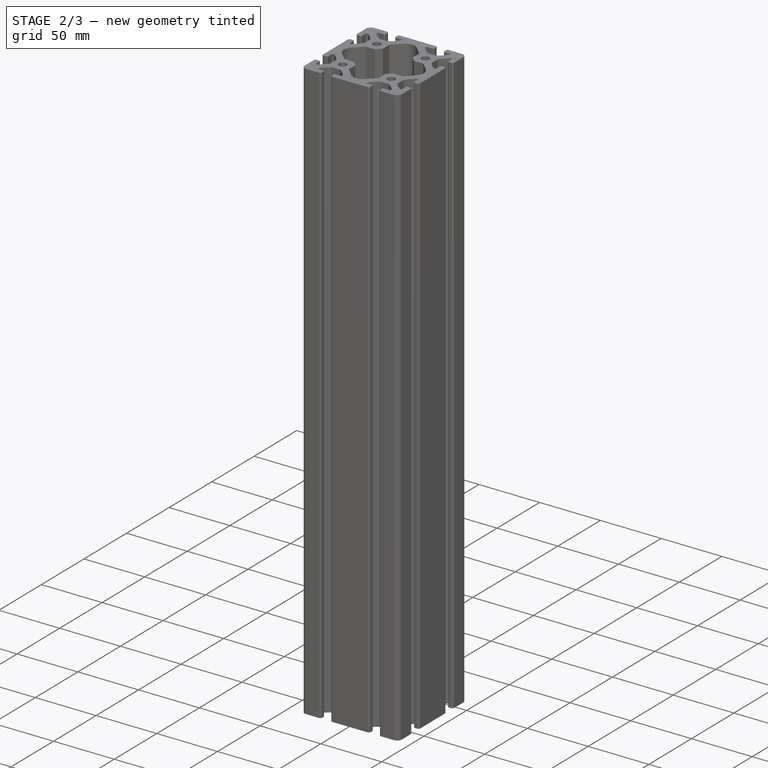
[diagram: stage 2 of 3 — iso view after this stage's code; geometry added in this stage tinted green]
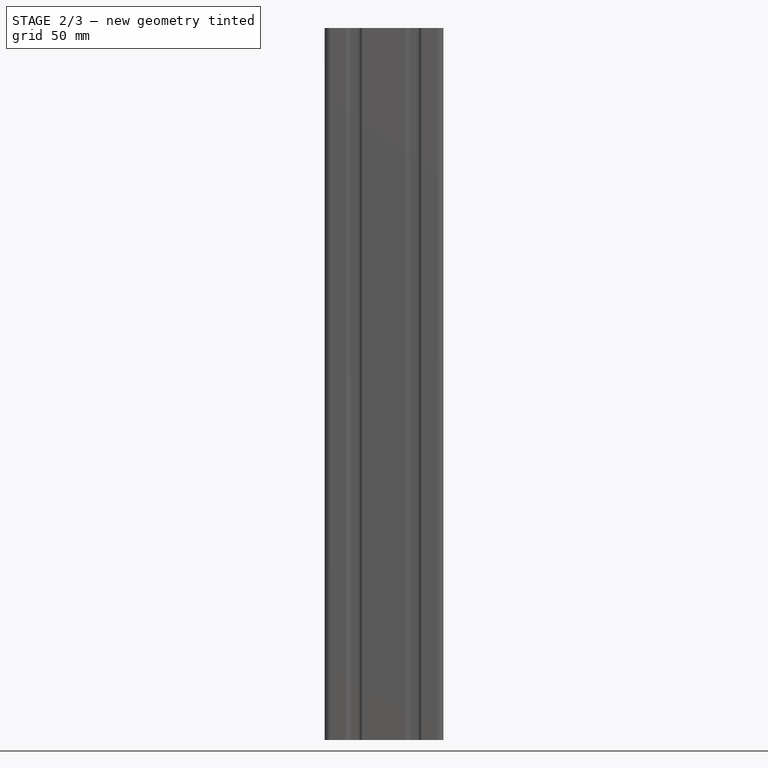
[diagram: stage 2 of 3 — front view after this stage's code; geometry added in this stage tinted green]
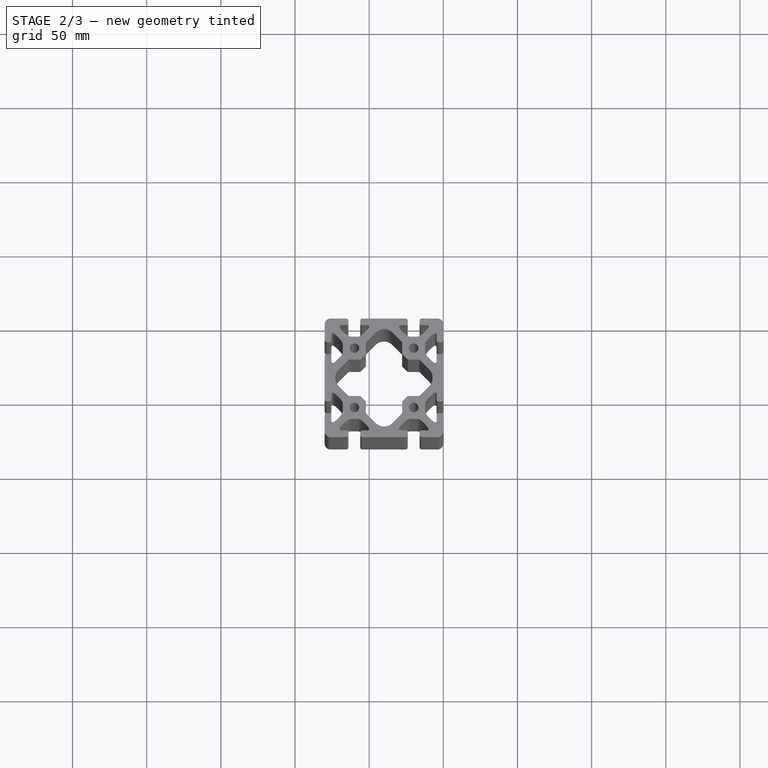
[diagram: stage 2 of 3 — top view after this stage's code; geometry added in this stage tinted green]
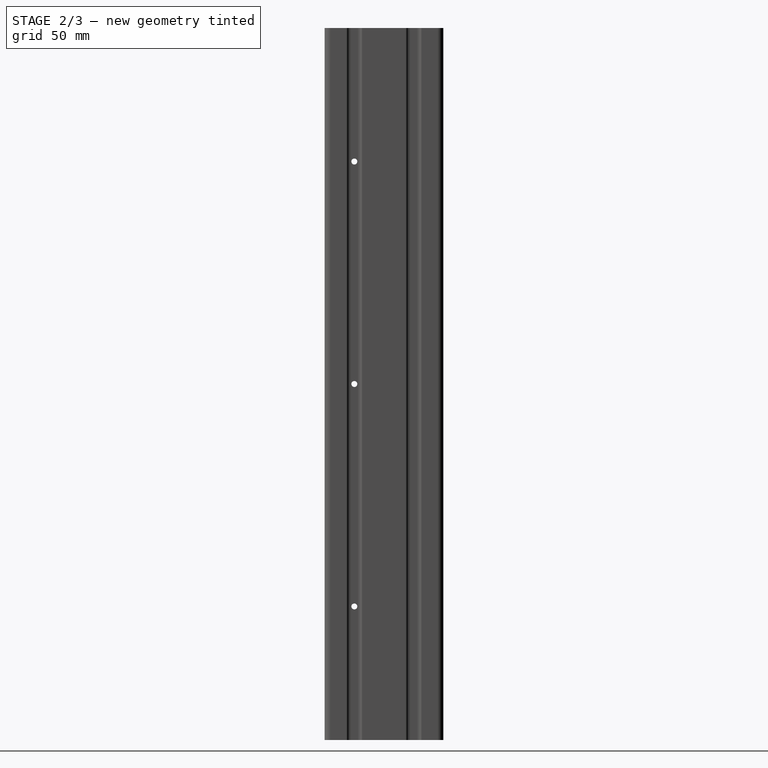
[diagram: stage 2 of 3 — right view after this stage's code; geometry added in this stage tinted green]
FEATURE [Sketcher::SketchObject] Sketch002  label="Отверстие2"
  ArcFitTolerance = 0
  AttachmentSupport = -> [Hole]
  ExternalBSplineMaxDegree = 0
  ExternalBSplineTolerance = 0
  FullyConstrained = false
  InternalTolerance = 1e-06
  InvalidShape = false
  MakeInternals = false
  MapMode = 5
  Placement = pos=(-12.25,0,0) rot=(0.57735,0.57735,0.57735;2.0944rad)
  Support = -> [Hole]
  TreeRank = 0
  ValidateShape = false
  sketch-geometry (6):
    g0: LineSegment [constr] StartX=-22.0319 StartY=-240 StartZ=0 EndX=-17.9681 EndY=-240 EndZ=0
    g1: LineSegment [constr] StartX=-17.9681 StartY=-240 StartZ=0 EndX=-17.9681 EndY=0 EndZ=0
    g2: LineSegment [constr] StartX=-17.9681 StartY=0 StartZ=0 EndX=-22.0319 EndY=0 EndZ=0
    g3: LineSegment [constr] StartX=-22.0319 StartY=0 StartZ=0 EndX=-22.0319 EndY=-240 EndZ=0
    g4: LineSegment [constr] StartX=-20 StartY=-150 StartZ=0 EndX=-20 EndY=-240 EndZ=0
    g5: Circle CenterX=-20 CenterY=-150 CenterZ=0 NormalX=0 NormalY=0 NormalZ=1 AngleXU=0 Radius=2
  constraints (16):
    c: Coincident(g0,g1)
    c: Coincident(g1,g2)
    c: Coincident(g2,g3)
    c: Coincident(g3,g0)
    c: Horizontal(g0)
    c: Horizontal(g2)
    c: Vertical(g1)
    c: Vertical(g3)
    c: Vertical(g4)
    c: Symmetric(g0,g0,g4)
    c: DistanceX(g4,g-1) = 20
    c: Coincident(g5,g4)
    c: Radius(g5) = 2
    c: DistanceY(g4,g4) = 90
    c: DistanceY(g3,g3) = 240
    c: PointOnObject(g2,g-1)
FEATURE [PartDesign::LinearPattern] LinearPattern
  AddSubType = 0
  BaseFeature = -> Hole
  CopyShape = false
  Direction = -> Sketch001 [V_Axis]
  InvalidShape = false
  Length = 300
  NewSolid = false
  Occurrences = 3
  OriginalSubs = -> [Hole]
  Originals = -> [Hole]
  ParallelTransform = true
  SubTransform = true
  Suppress = false
  TreeRank = 0
  ValidateShape = true
  _Version = 0
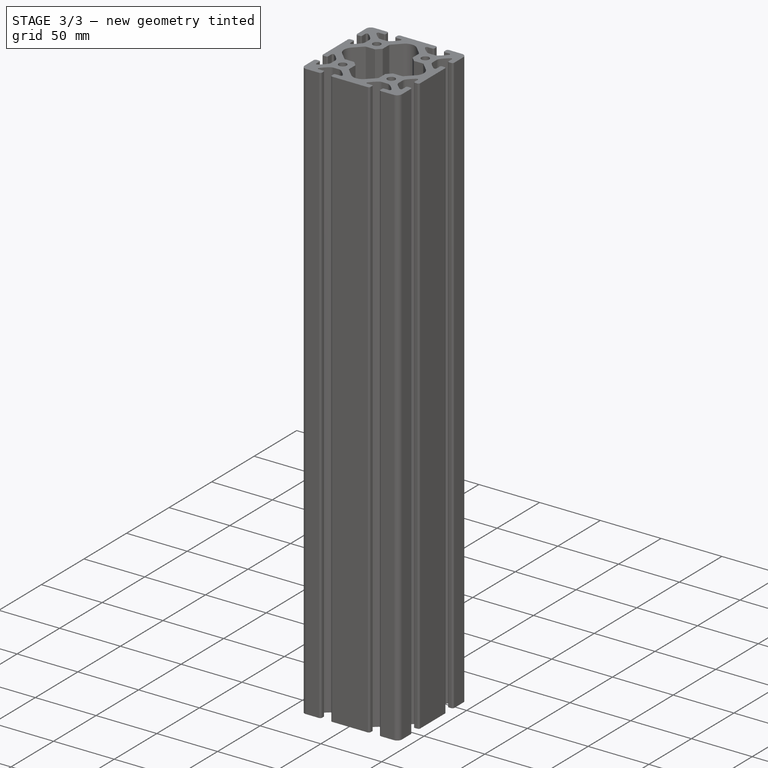
[diagram: stage 3 of 3 — iso view after this stage's code; geometry added in this stage tinted green]
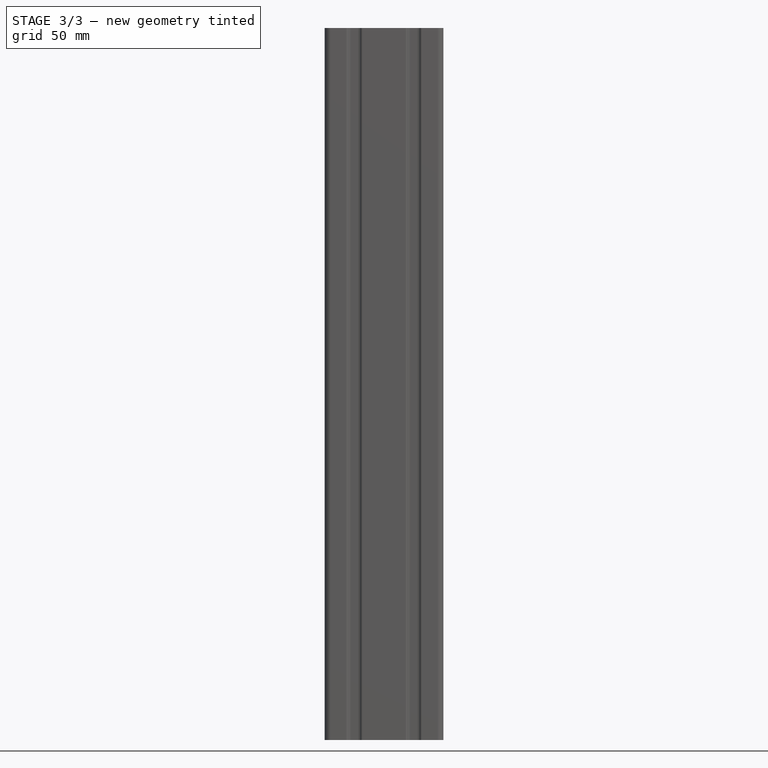
[diagram: stage 3 of 3 — front view after this stage's code; geometry added in this stage tinted green]
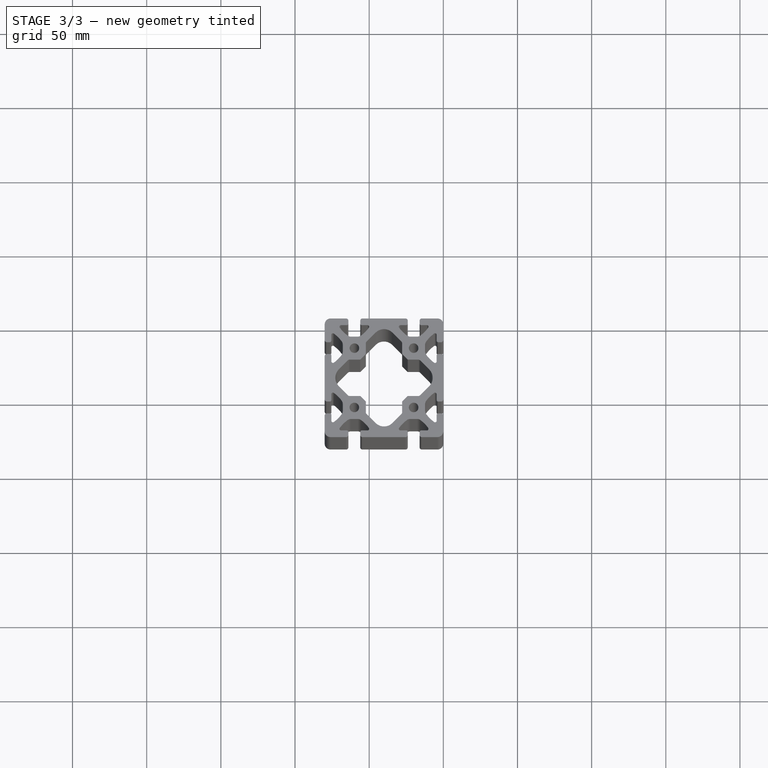
[diagram: stage 3 of 3 — top view after this stage's code; geometry added in this stage tinted green]
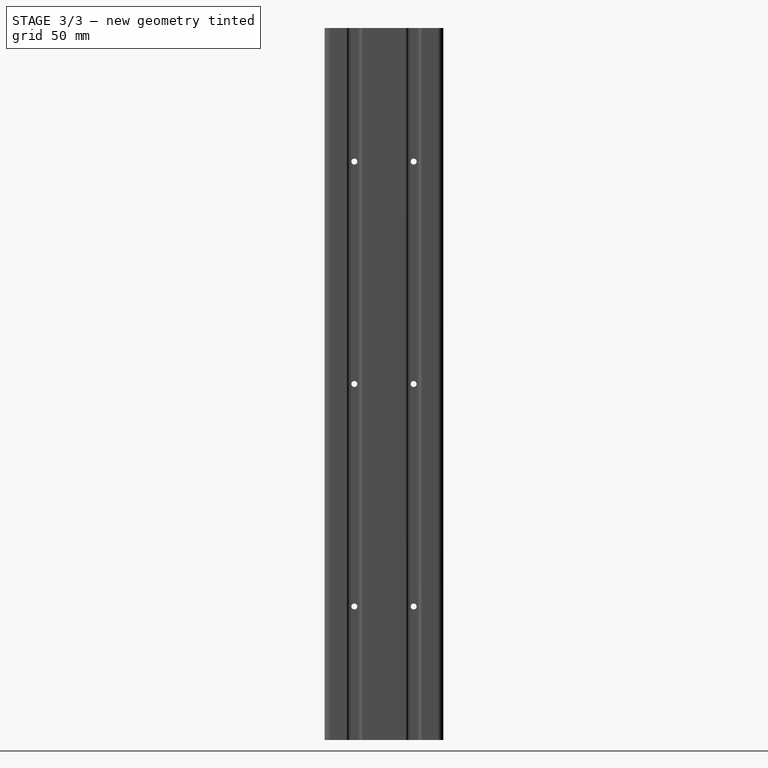
[diagram: stage 3 of 3 — right view after this stage's code; geometry added in this stage tinted green]
FEATURE [PartDesign::Hole] Hole001
  AddSubType = 1
  BaseFeature = -> LinearPattern
  ClaimChildren = false
  CustomThreadClearance = 0
  Depth = 996.169
  DepthType = 1
  Diameter = 4
  DrillForDepth = false
  DrillPoint = 1
  DrillPointAngle = 118
  Fit = 0
  FitJoin = 0
  HoleCutCountersinkAngle = 90
  HoleCutCustomValues = false
  HoleCutDepth = 0
  HoleCutDiameter = 6.1
  HoleCutType = 0
  InnerFit = 0
  InnerFitJoin = 0
  InvalidShape = false
  ModelThread = false
  NewSolid = false
  Profile = -> Sketch002
  Suppress = false
  Tapered = false
  TaperedAngle = 90
  ThreadClass = 0
  ThreadDepth = 996.169
  ThreadDepthType = 0
  ThreadDirection = 0
  ThreadFit = 0
  ThreadSize = 0
  ThreadType = 0
  Threaded = false
  TreeRank = 0
  UseCustomThreadClearance = false
  ValidateShape = true
  _ProfileBasedVersion = 0
FEATURE [PartDesign::LinearPattern] LinearPattern001
  AddSubType = 0
  BaseFeature = -> Hole001
  CopyShape = false
  Direction = -> Sketch002 [V_Axis]
  InvalidShape = false
  Length = 300
  NewSolid = false
  Occurrences = 3
  OriginalSubs = -> [Hole001]
  Originals = -> [Hole001]
  ParallelTransform = true
  SubTransform = true
  Suppress = false
  TreeRank = 0
  ValidateShape = true
  _Version = 0
FEATURE [PartDesign::Body] Body  label="Профиль80х80"
  AutoGroupSolids = false
  ClaimAllChildren = false
  ExportMode = 0
  Group = -> [Import,Pad,Sketch001,Hole,Sketch002,LinearPattern,Hole001,LinearPattern001,Sketch]
  InvalidShape = false
  Origin = -> Origin
  Tip = -> LinearPattern001
  TreeRank = 0
  ValidateShape = false
  _ExportChildren = -> [Pad,Hole,LinearPattern,Hole001,LinearPattern001,Sketch]
  _GroupVersion = 1
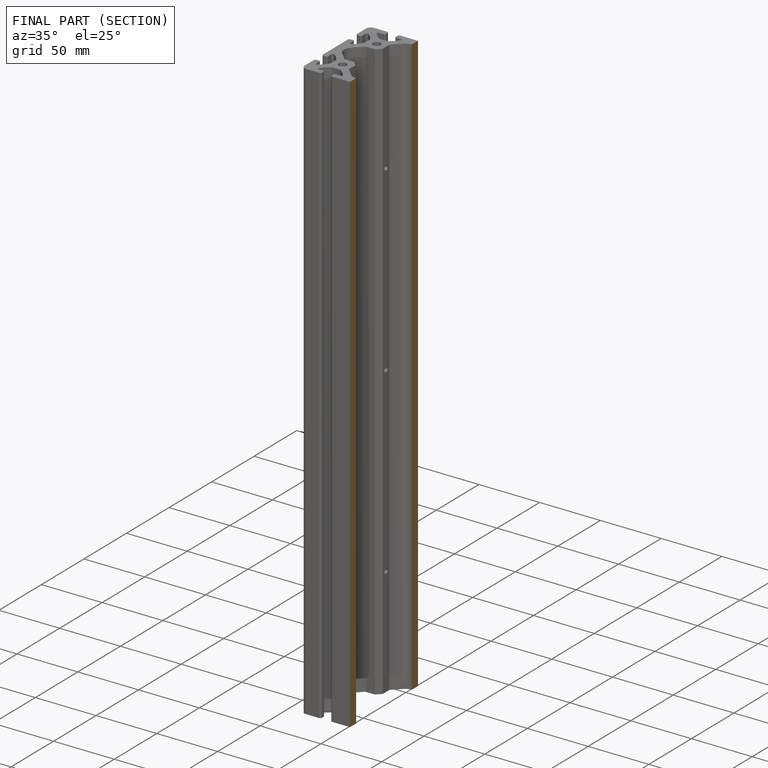
[diagram: finished part — half-section view (interior)]
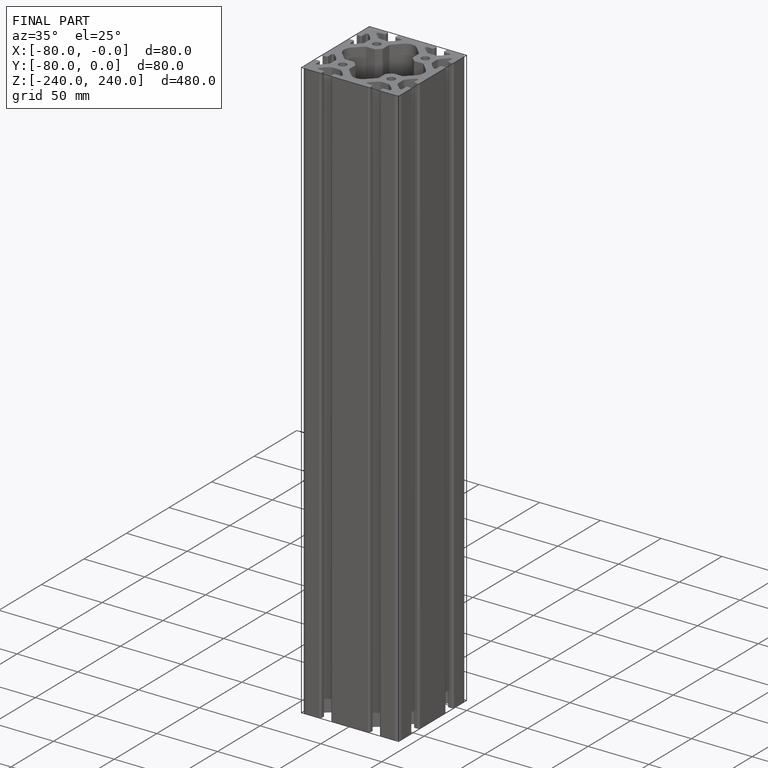
[diagram: finished part — iso view with bounding-box wireframe]
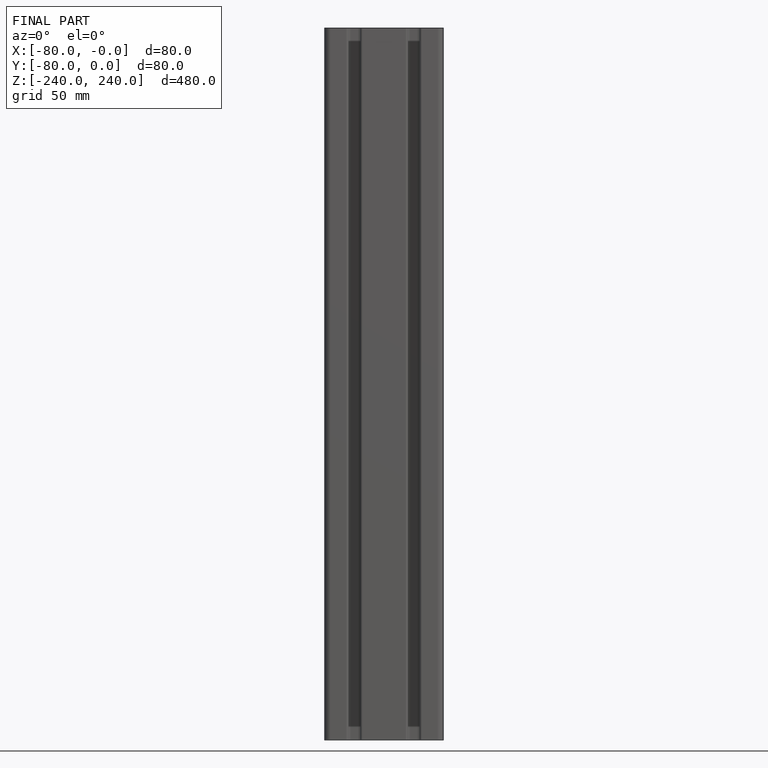
[diagram: finished part — front view with bounding-box wireframe]
